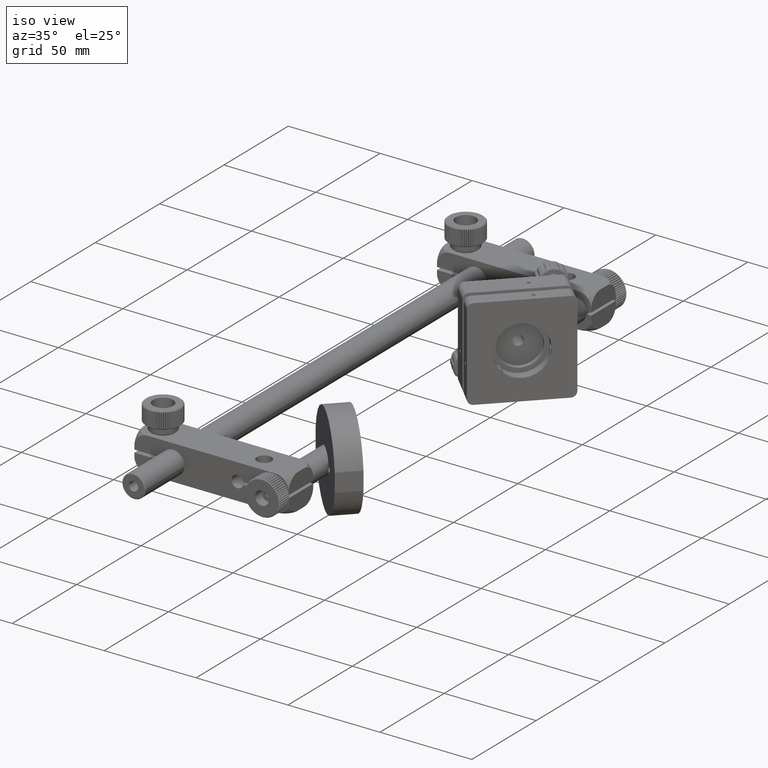
[diagram: clean part render]
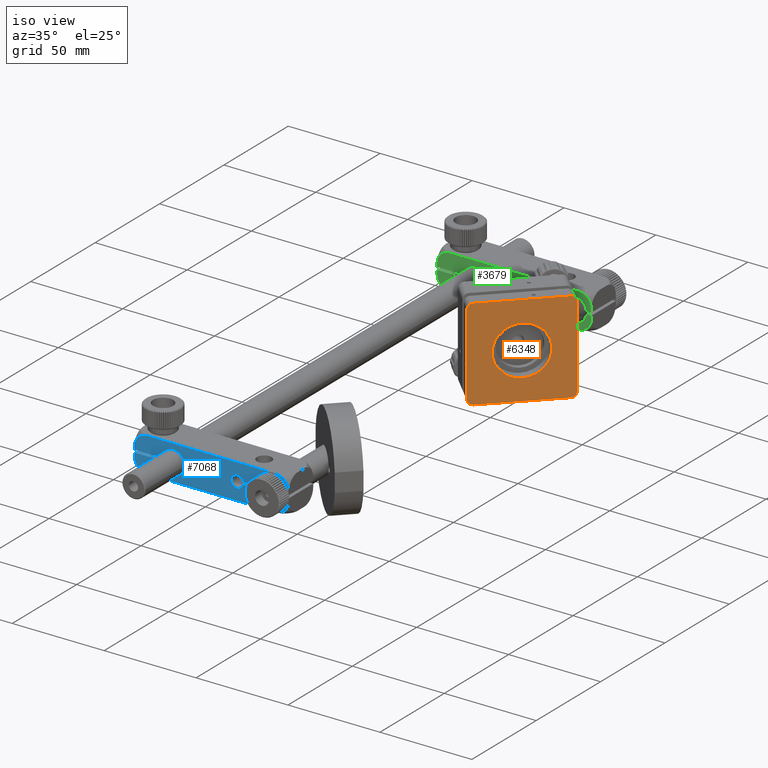
[diagram: same view with three faces highlighted in distinct colors, each labeled with its STEP entity id]
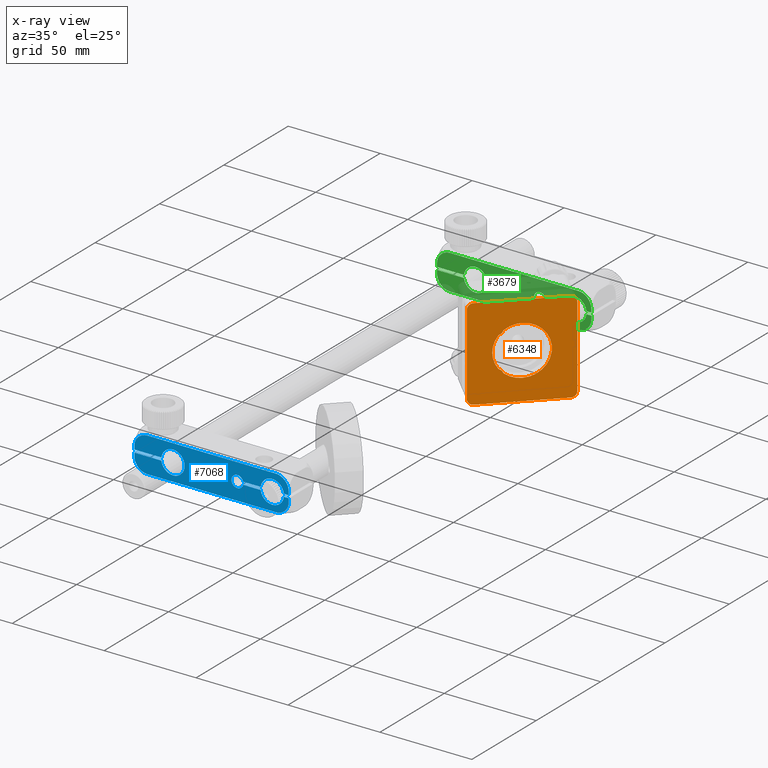
[diagram: x-ray of the same camera — body ghosted, the three highlighted faces saturated]
A machine part, iso view with three faces highlighted in distinct colors.
The next image is the same camera in x-ray (body ghosted, the three faces saturated) — at least one of them is partly hidden behind the body in this view.
Their STEP definitions:

[orange] entity #6348 — the highlighted planar face has unit normal (-0.7071, 0.7071, -0).
#884 = DIRECTION ( 'NONE',  ( -0.7071067811865432400, 0.7071067811865517900, -7.726098800170421200E-016 ) ) ;
#1166 = LINE ( 'NONE', #47859, #22134 ) ;
#1395 = ORIENTED_EDGE ( 'NONE', *, *, #35103, .F. ) ;
#1396 = CARTESIAN_POINT ( 'NONE',  ( 44.08302381741863500, 295.3695901585534800, -22.00000000000014900 ) ) ;
#1424 = DIRECTION ( 'NONE',  ( 0.7071067811865432400, -0.7071067811865517900, 7.726098800170421200E-016 ) ) ;
#1520 = CARTESIAN_POINT ( 'NONE',  ( 75.19572218962706200, 326.4822885307614200, 21.99999999999983700 ) ) ;
#2017 = DIRECTION ( 'NONE',  ( 0.0000000000000000000, 0.0000000000000000000, -1.000000000000000000 ) ) ;
#2019 = ORIENTED_EDGE ( 'NONE', *, *, #11513, .F. ) ;
#2107 = CIRCLE ( 'NONE', #31278, 2.999999999999999100 ) ;
#2232 = CIRCLE ( 'NONE', #7557, 2.000000000000000000 ) ;
#2311 = CARTESIAN_POINT ( 'NONE',  ( 75.19572218962696300, 326.4822885307612500, -25.00000000000016700 ) ) ;
#2489 = EDGE_CURVE ( 'NONE', #10709, #31782, #1166, .T. ) ;
#2712 = LINE ( 'NONE', #18917, #4992 ) ;
#4283 = DIRECTION ( 'NONE',  ( -2.495400289231349500E-016, 8.430953418204121900E-016, 1.000000000000000000 ) ) ;
#4641 = DIRECTION ( 'NONE',  ( -0.7071067811865432400, 0.7071067811865517900, -7.726098800170421200E-016 ) ) ;
#4992 = VECTOR ( 'NONE', #4283, 1000.000000000000000 ) ;
#5052 = CARTESIAN_POINT ( 'NONE',  ( 53.48594378235507200, 304.7725101234897200, 10.01490865749313400 ) ) ;
#5408 = CARTESIAN_POINT ( 'NONE',  ( 41.96170347385886900, 293.2482698149938800, -22.00000000000012800 ) ) ;
#6301 = AXIS2_PLACEMENT_3D ( 'NONE', #35407, #20872, #2017 ) ;
#6348 = ADVANCED_FACE ( 'NONE', ( #13882, #20896 ), #22699, .F. ) ;
#6369 = CIRCLE ( 'NONE', #26752, 13.50000000000000000 ) ;
#6393 = EDGE_CURVE ( 'NONE', #34385, #45968, #2712, .T. ) ;
#6785 = DIRECTION ( 'NONE',  ( 0.7071067811865517900, 0.7071067811865432400, -4.985580538488180600E-016 ) ) ;
#6926 = AXIS2_PLACEMENT_3D ( 'NONE', #23333, #884, #11575 ) ;
#6981 = VECTOR ( 'NONE', #40689, 1000.000000000000000 ) ;
#7453 = CARTESIAN_POINT ( 'NONE',  ( 51.86119841047083400, 303.1477647516055100, 10.99999999999983500 ) ) ;
#7524 = EDGE_CURVE ( 'NONE', #47754, #15612, #2232, .T. ) ;
#7557 = AXIS2_PLACEMENT_3D ( 'NONE', #8197, #4641, #34796 ) ;
#7682 = VERTEX_POINT ( 'NONE', #39167 ) ;
#7685 = AXIS2_PLACEMENT_3D ( 'NONE', #7453, #18359, #33431 ) ;
#7697 = ORIENTED_EDGE ( 'NONE', *, *, #37766, .F. ) ;
#7938 = VERTEX_POINT ( 'NONE', #25491 ) ;
#7948 = DIRECTION ( 'NONE',  ( 0.0000000000000000000, 0.0000000000000000000, 1.000000000000000000 ) ) ;
#8197 = CARTESIAN_POINT ( 'NONE',  ( 54.78574007986245700, 306.0723064209970500, -9.226835583488078600 ) ) ;
#8597 = CIRCLE ( 'NONE', #9053, 2.000000000000000000 ) ;
#8804 = CARTESIAN_POINT ( 'NONE',  ( 77.31704253318663700, 328.6036088743209700, -22.00000000000012400 ) ) ;
#9053 = AXIS2_PLACEMENT_3D ( 'NONE', #14926, #37773, #15389 ) ;
#9741 = ORIENTED_EDGE ( 'NONE', *, *, #2489, .F. ) ;
#10414 = AXIS2_PLACEMENT_3D ( 'NONE', #1396, #27630, #27311 ) ;
#10709 = VERTEX_POINT ( 'NONE', #32726 ) ;
#10797 = DIRECTION ( 'NONE',  ( -0.7071067811865432400, 0.7071067811865517900, -7.726098800170421200E-016 ) ) ;
#10813 = CIRCLE ( 'NONE', #47656, 2.999999999999999100 ) ;
#11046 = CARTESIAN_POINT ( 'NONE',  ( 59.63937300352291300, 310.9259393446574800, -1.679664435888853500E-013 ) ) ;
#11188 = ORIENTED_EDGE ( 'NONE', *, *, #45664, .T. ) ;
#11355 = VERTEX_POINT ( 'NONE', #29856 ) ;
#11513 = EDGE_CURVE ( 'NONE', #35102, #42177, #13041, .T. ) ;
#11575 = DIRECTION ( 'NONE',  ( -3.052961531661671500E-016, 7.873392175773806800E-016, 1.000000000000000000 ) ) ;
#12248 = EDGE_CURVE ( 'NONE', #28258, #16186, #18791, .T. ) ;
#12839 = CIRCLE ( 'NONE', #35946, 2.000000000000000000 ) ;
#13041 = CIRCLE ( 'NONE', #20173, 13.50000000000000000 ) ;
#13882 = FACE_BOUND ( 'NONE', #21316, .T. ) ;
#13988 = CARTESIAN_POINT ( 'NONE',  ( 59.63937300352291300, 310.9259393446574800, -1.679664435888853500E-013 ) ) ;
#14066 = ORIENTED_EDGE ( 'NONE', *, *, #27384, .F. ) ;
#14601 = DIRECTION ( 'NONE',  ( 0.0000000000000000000, 0.0000000000000000000, 1.000000000000000000 ) ) ;
#14926 = CARTESIAN_POINT ( 'NONE',  ( 54.78574007986229300, 306.0723064209970500, 9.226835583487750000 ) ) ;
#15033 = EDGE_CURVE ( 'NONE', #19788, #42177, #23089, .T. ) ;
#15064 = ORIENTED_EDGE ( 'NONE', *, *, #31388, .F. ) ;
#15389 = DIRECTION ( 'NONE',  ( 0.0000000000000000000, 0.0000000000000000000, 1.000000000000000000 ) ) ;
#15419 = CARTESIAN_POINT ( 'NONE',  ( 52.55776317884549800, 303.8443295199800800, -8.702263059678585900 ) ) ;
#15612 = VERTEX_POINT ( 'NONE', #19244 ) ;
#16186 = VERTEX_POINT ( 'NONE', #5052 ) ;
#17111 = ORIENTED_EDGE ( 'NONE', *, *, #12248, .T. ) ;
#17325 = CARTESIAN_POINT ( 'NONE',  ( 75.19572218962704800, 326.4822885307613700, 24.99999999999983700 ) ) ;
#17881 = ORIENTED_EDGE ( 'NONE', *, *, #7524, .T. ) ;
#17979 = ORIENTED_EDGE ( 'NONE', *, *, #46944, .F. ) ;
#18162 = DIRECTION ( 'NONE',  ( -0.7071067811865432400, 0.7071067811865517900, -7.726098800170421200E-016 ) ) ;
#18359 = DIRECTION ( 'NONE',  ( 0.7071067811865432400, -0.7071067811865517900, 7.726098800170421200E-016 ) ) ;
#18391 = AXIS2_PLACEMENT_3D ( 'NONE', #45754, #38271, #27208 ) ;
#18576 = EDGE_CURVE ( 'NONE', #33568, #11355, #6369, .T. ) ;
#18791 = CIRCLE ( 'NONE', #7685, 2.500000000000000400 ) ;
#18917 = CARTESIAN_POINT ( 'NONE',  ( 41.96170347385886900, 293.2482698149938800, -22.00000000000012800 ) ) ;
#19019 = CARTESIAN_POINT ( 'NONE',  ( 53.11501499354523800, 304.4015813346798600, 6.864073507421006000 ) ) ;
#19078 = CIRCLE ( 'NONE', #44579, 2.999999999999999100 ) ;
#19186 = ORIENTED_EDGE ( 'NONE', *, *, #35408, .F. ) ;
#19244 = CARTESIAN_POINT ( 'NONE',  ( 53.48594378235505800, 304.7725101234896700, -10.01490865749343800 ) ) ;
#19352 = VERTEX_POINT ( 'NONE', #34569 ) ;
#19782 = DIRECTION ( 'NONE',  ( 5.139921410301650800E-016, 0.0000000000000000000, -1.000000000000000000 ) ) ;
#19788 = VERTEX_POINT ( 'NONE', #15419 ) ;
#20173 = AXIS2_PLACEMENT_3D ( 'NONE', #39026, #1424, #46036 ) ;
#20872 = DIRECTION ( 'NONE',  ( 0.7071067811865432400, -0.7071067811865517900, 7.726098800170421200E-016 ) ) ;
#20896 = FACE_OUTER_BOUND ( 'NONE', #32618, .T. ) ;
#21316 = EDGE_LOOP ( 'NONE', ( #7697, #17881, #11188, #28072, #2019, #45417, #17111, #38017, #19186, #44529 ) ) ;
#22134 = VECTOR ( 'NONE', #6785, 1000.000000000000000 ) ;
#22699 = PLANE ( 'NONE',  #6926 ) ;
#23089 = CIRCLE ( 'NONE', #18391, 2.000000000000000000 ) ;
#23333 = CARTESIAN_POINT ( 'NONE',  ( 75.19572218962696300, 326.4822885307612500, -22.00000000000016700 ) ) ;
#24314 = DIRECTION ( 'NONE',  ( 5.139921410301650800E-016, 0.0000000000000000000, -1.000000000000000000 ) ) ;
#24616 = ORIENTED_EDGE ( 'NONE', *, *, #28579, .F. ) ;
#25491 = CARTESIAN_POINT ( 'NONE',  ( 44.08302381741864900, 295.3695901585534800, -25.00000000000014600 ) ) ;
#26752 = AXIS2_PLACEMENT_3D ( 'NONE', #13988, #36684, #36523 ) ;
#27208 = DIRECTION ( 'NONE',  ( 0.0000000000000000000, 0.0000000000000000000, 1.000000000000000000 ) ) ;
#27297 = VERTEX_POINT ( 'NONE', #41771 ) ;
#27311 = DIRECTION ( 'NONE',  ( 0.0000000000000000000, 0.0000000000000000000, 1.000000000000000000 ) ) ;
#27384 = EDGE_CURVE ( 'NONE', #27297, #19352, #46594, .T. ) ;
#27511 = CARTESIAN_POINT ( 'NONE',  ( 59.63937300352291300, 310.9259393446574800, -1.679664435888853500E-013 ) ) ;
#27630 = DIRECTION ( 'NONE',  ( -0.7071067811865432400, 0.7071067811865517900, -7.726098800170421200E-016 ) ) ;
#28072 = ORIENTED_EDGE ( 'NONE', *, *, #15033, .T. ) ;
#28258 = VERTEX_POINT ( 'NONE', #40470 ) ;
#28579 = EDGE_CURVE ( 'NONE', #31782, #27297, #19078, .T. ) ;
#29166 = VECTOR ( 'NONE', #45675, 1000.000000000000000 ) ;
#29564 = CIRCLE ( 'NONE', #46279, 13.50000000000000000 ) ;
#29770 = CARTESIAN_POINT ( 'NONE',  ( 53.94163000618236500, 305.2281963473169500, -10.83150264148596300 ) ) ;
#29856 = CARTESIAN_POINT ( 'NONE',  ( 59.63937300352291300, 310.9259393446574800, 13.49999999999983100 ) ) ;
#29955 = CARTESIAN_POINT ( 'NONE',  ( 75.19572218962696300, 326.4822885307612500, -25.00000000000016700 ) ) ;
#29962 = DIRECTION ( 'NONE',  ( 0.7071067811865432400, -0.7071067811865517900, 7.726098800170421200E-016 ) ) ;
#30189 = CIRCLE ( 'NONE', #10414, 2.999999999999999100 ) ;
#31278 = AXIS2_PLACEMENT_3D ( 'NONE', #47877, #18162, #14601 ) ;
#31388 = EDGE_CURVE ( 'NONE', #19352, #34302, #2107, .T. ) ;
#31782 = VERTEX_POINT ( 'NONE', #17325 ) ;
#31845 = DIRECTION ( 'NONE',  ( -0.7071067811865432400, 0.7071067811865517900, -7.726098800170421200E-016 ) ) ;
#32425 = ORIENTED_EDGE ( 'NONE', *, *, #6393, .F. ) ;
#32618 = EDGE_LOOP ( 'NONE', ( #15064, #14066, #24616, #9741, #38426, #32425, #17979, #1395 ) ) ;
#32726 = CARTESIAN_POINT ( 'NONE',  ( 44.08302381741879100, 295.3695901585534800, 24.99999999999985400 ) ) ;
#33201 = CARTESIAN_POINT ( 'NONE',  ( 44.08302381741877000, 295.3695901585535400, 21.99999999999985800 ) ) ;
#33431 = DIRECTION ( 'NONE',  ( 0.0000000000000000000, 0.0000000000000000000, -1.000000000000000000 ) ) ;
#33568 = VERTEX_POINT ( 'NONE', #48216 ) ;
#33712 = CARTESIAN_POINT ( 'NONE',  ( 51.98034403528812000, 303.2669103764229100, 8.057825421755124400 ) ) ;
#34230 = DIRECTION ( 'NONE',  ( -0.7071067811865432400, 0.7071067811865517900, -7.726098800170421200E-016 ) ) ;
#34302 = VERTEX_POINT ( 'NONE', #2311 ) ;
#34385 = VERTEX_POINT ( 'NONE', #5408 ) ;
#34569 = CARTESIAN_POINT ( 'NONE',  ( 77.31704253318663700, 328.6036088743209700, -22.00000000000012400 ) ) ;
#34668 = EDGE_CURVE ( 'NONE', #35102, #28258, #12839, .T. ) ;
#34796 = DIRECTION ( 'NONE',  ( 0.0000000000000000000, 0.0000000000000000000, 1.000000000000000000 ) ) ;
#35102 = VERTEX_POINT ( 'NONE', #33712 ) ;
#35103 = EDGE_CURVE ( 'NONE', #34302, #7938, #47242, .T. ) ;
#35369 = DIRECTION ( 'NONE',  ( 0.0000000000000000000, 0.0000000000000000000, -1.000000000000000000 ) ) ;
#35407 = CARTESIAN_POINT ( 'NONE',  ( 51.86119841047082000, 303.1477647516054500, -11.00000000000016500 ) ) ;
#35408 = EDGE_CURVE ( 'NONE', #11355, #7682, #43737, .T. ) ;
#35946 = AXIS2_PLACEMENT_3D ( 'NONE', #19019, #34230, #7948 ) ;
#36092 = CIRCLE ( 'NONE', #6301, 2.500000000000000400 ) ;
#36523 = DIRECTION ( 'NONE',  ( 5.139921410301650800E-016, 0.0000000000000000000, -1.000000000000000000 ) ) ;
#36684 = DIRECTION ( 'NONE',  ( 0.7071067811865432400, -0.7071067811865517900, 7.726098800170421200E-016 ) ) ;
#36712 = EDGE_CURVE ( 'NONE', #16186, #7682, #8597, .T. ) ;
#37766 = EDGE_CURVE ( 'NONE', #47754, #33568, #29564, .T. ) ;
#37773 = DIRECTION ( 'NONE',  ( -0.7071067811865432400, 0.7071067811865517900, -7.726098800170421200E-016 ) ) ;
#38017 = ORIENTED_EDGE ( 'NONE', *, *, #36712, .T. ) ;
#38271 = DIRECTION ( 'NONE',  ( -0.7071067811865432400, 0.7071067811865517900, -7.726098800170421200E-016 ) ) ;
#38426 = ORIENTED_EDGE ( 'NONE', *, *, #47806, .F. ) ;
#39026 = CARTESIAN_POINT ( 'NONE',  ( 59.63937300352291300, 310.9259393446574800, -1.679664435888853500E-013 ) ) ;
#39167 = CARTESIAN_POINT ( 'NONE',  ( 53.94163000618233600, 305.2281963473169500, 10.83150264148566500 ) ) ;
#40470 = CARTESIAN_POINT ( 'NONE',  ( 52.55776317884543400, 303.8443295199801400, 8.702263059678278600 ) ) ;
#40689 = DIRECTION ( 'NONE',  ( -0.7071067811865517900, -0.7071067811865432400, 4.985580538488180600E-016 ) ) ;
#40925 = CARTESIAN_POINT ( 'NONE',  ( 41.96170347385911700, 293.2482698149939300, 21.99999999999983700 ) ) ;
#41771 = CARTESIAN_POINT ( 'NONE',  ( 77.31704253318668000, 328.6036088743210300, 21.99999999999984000 ) ) ;
#42177 = VERTEX_POINT ( 'NONE', #43357 ) ;
#43357 = CARTESIAN_POINT ( 'NONE',  ( 51.98034403528825500, 303.2669103764229100, -8.057825421755461900 ) ) ;
#43737 = CIRCLE ( 'NONE', #47201, 13.50000000000000000 ) ;
#44529 = ORIENTED_EDGE ( 'NONE', *, *, #18576, .F. ) ;
#44578 = DIRECTION ( 'NONE',  ( 0.0000000000000000000, 0.0000000000000000000, 1.000000000000000000 ) ) ;
#44579 = AXIS2_PLACEMENT_3D ( 'NONE', #1520, #31845, #35369 ) ;
#45417 = ORIENTED_EDGE ( 'NONE', *, *, #34668, .T. ) ;
#45664 = EDGE_CURVE ( 'NONE', #15612, #19788, #36092, .T. ) ;
#45675 = DIRECTION ( 'NONE',  ( 3.052961531661671500E-016, -7.873392175773806800E-016, -1.000000000000000000 ) ) ;
#45754 = CARTESIAN_POINT ( 'NONE',  ( 53.11501499354525200, 304.4015813346798600, -6.864073507421344400 ) ) ;
#45896 = DIRECTION ( 'NONE',  ( 0.7071067811865432400, -0.7071067811865517900, 7.726098800170421200E-016 ) ) ;
#45968 = VERTEX_POINT ( 'NONE', #40925 ) ;
#46036 = DIRECTION ( 'NONE',  ( 5.139921410301650800E-016, 0.0000000000000000000, -1.000000000000000000 ) ) ;
#46279 = AXIS2_PLACEMENT_3D ( 'NONE', #27511, #45896, #19782 ) ;
#46594 = LINE ( 'NONE', #8804, #29166 ) ;
#46944 = EDGE_CURVE ( 'NONE', #7938, #34385, #30189, .T. ) ;
#47201 = AXIS2_PLACEMENT_3D ( 'NONE', #11046, #29962, #24314 ) ;
#47242 = LINE ( 'NONE', #29955, #6981 ) ;
#47656 = AXIS2_PLACEMENT_3D ( 'NONE', #33201, #10797, #44578 ) ;
#47754 = VERTEX_POINT ( 'NONE', #29770 ) ;
#47806 = EDGE_CURVE ( 'NONE', #45968, #10709, #10813, .T. ) ;
#47859 = CARTESIAN_POINT ( 'NONE',  ( 75.19572218962704800, 326.4822885307613700, 24.99999999999983700 ) ) ;
#47877 = CARTESIAN_POINT ( 'NONE',  ( 75.19572218962696300, 326.4822885307612500, -22.00000000000016700 ) ) ;
#48216 = CARTESIAN_POINT ( 'NONE',  ( 59.63937300352293400, 310.9259393446574800, -13.50000000000016900 ) ) ;

[blue] entity #7068 — the highlighted planar face has unit normal (0, 1, 0).
#165 = EDGE_CURVE ( 'NONE', #8453, #15293, #24598, .T. ) ;
#579 = CIRCLE ( 'NONE', #11562, 6.350000000000000500 ) ;
#591 = CARTESIAN_POINT ( 'NONE',  ( 60.30555310817379000, 124.8670949863762400, -0.7500000000000218700 ) ) ;
#779 = CARTESIAN_POINT ( 'NONE',  ( 55.92893218813449600, 124.8670949863762400, 2.428932188134529400 ) ) ;
#788 = DIRECTION ( 'NONE',  ( 1.000000000000000000, 0.0000000000000000000, 1.137413894084777200E-017 ) ) ;
#1185 = CARTESIAN_POINT ( 'NONE',  ( -21.00000000000000000, 124.8670949863762400, -0.7500000000000222000 ) ) ;
#1271 = VECTOR ( 'NONE', #17478, 1000.000000000000000 ) ;
#1423 = CIRCLE ( 'NONE', #22997, 7.071067811865467500 ) ;
#1604 = VECTOR ( 'NONE', #25143, 1000.000000000000000 ) ;
#1605 = ORIENTED_EDGE ( 'NONE', *, *, #35314, .T. ) ;
#1659 = EDGE_CURVE ( 'NONE', #46284, #22802, #25697, .T. ) ;
#1732 = CARTESIAN_POINT ( 'NONE',  ( -21.00000000000000000, 124.8670949863762400, 9.499999999999976900 ) ) ;
#1783 = CIRCLE ( 'NONE', #10128, 6.350000000000003200 ) ;
#2374 = DIRECTION ( 'NONE',  ( -0.0000000000000000000, -0.0000000000000000000, -1.000000000000000000 ) ) ;
#2600 = DIRECTION ( 'NONE',  ( 0.0000000000000000000, 1.000000000000000000, 0.0000000000000000000 ) ) ;
#2750 = DIRECTION ( 'NONE',  ( -0.0000000000000000000, -0.0000000000000000000, -1.000000000000000000 ) ) ;
#3044 = VERTEX_POINT ( 'NONE', #33646 ) ;
#3172 = DIRECTION ( 'NONE',  ( 0.0000000000000000000, 0.0000000000000000000, 1.000000000000000000 ) ) ;
#3225 = EDGE_CURVE ( 'NONE', #10530, #21928, #30316, .T. ) ;
#3313 = CARTESIAN_POINT ( 'NONE',  ( 60.30555310817379000, 124.8670949863762400, 0.7499999999999784600 ) ) ;
#3498 = CARTESIAN_POINT ( 'NONE',  ( 60.30555310817379000, 124.8670949863762400, -0.7500000000000218700 ) ) ;
#3736 = CARTESIAN_POINT ( 'NONE',  ( 47.69444689182622500, 124.8670949863762400, -0.7500000000000257600 ) ) ;
#3779 = EDGE_CURVE ( 'NONE', #13388, #12068, #12138, .T. ) ;
#3884 = EDGE_CURVE ( 'NONE', #10319, #18246, #6277, .T. ) ;
#4041 = CARTESIAN_POINT ( 'NONE',  ( -6.305553108173780800, 124.8670949863762400, 0.7499999999999781300 ) ) ;
#4350 = CARTESIAN_POINT ( 'NONE',  ( 38.16227766016837800, 124.8670949863762400, 0.7499999999999783500 ) ) ;
#4775 = VECTOR ( 'NONE', #19157, 1000.000000000000000 ) ;
#4816 = DIRECTION ( 'NONE',  ( 0.0000000000000000000, 0.0000000000000000000, 1.000000000000000000 ) ) ;
#4829 = CARTESIAN_POINT ( 'NONE',  ( -13.92893218813448900, 124.8670949863762400, -2.428932188134573300 ) ) ;
#5150 = EDGE_CURVE ( 'NONE', #33978, #8453, #17857, .T. ) ;
#5603 = CARTESIAN_POINT ( 'NONE',  ( 0.0000000000000000000, 124.8670949863762400, -2.494026576919642200E-014 ) ) ;
#5863 = DIRECTION ( 'NONE',  ( 0.0000000000000000000, 1.000000000000000000, 0.0000000000000000000 ) ) ;
#5879 = CARTESIAN_POINT ( 'NONE',  ( 63.00000000000000000, 124.8670949863762400, -0.7500000000000218700 ) ) ;
#5916 = ORIENTED_EDGE ( 'NONE', *, *, #26918, .T. ) ;
#6013 = EDGE_CURVE ( 'NONE', #21928, #15360, #44604, .T. ) ;
#6095 = DIRECTION ( 'NONE',  ( 0.0000000000000000000, 1.000000000000000000, 0.0000000000000000000 ) ) ;
#6125 = CARTESIAN_POINT ( 'NONE',  ( 38.16227766016838500, 124.8670949863762400, -0.7500000000000218700 ) ) ;
#6277 = CIRCLE ( 'NONE', #15309, 7.071067811865467500 ) ;
#6630 = VERTEX_POINT ( 'NONE', #21018 ) ;
#6863 = DIRECTION ( 'NONE',  ( 0.0000000000000000000, 1.000000000000000000, 0.0000000000000000000 ) ) ;
#7068 = ADVANCED_FACE ( 'NONE', ( #40747 ), #27710, .F. ) ;
#7549 = AXIS2_PLACEMENT_3D ( 'NONE', #46258, #42182, #20479 ) ;
#8116 = VECTOR ( 'NONE', #2750, 1000.000000000000000 ) ;
#8146 = CARTESIAN_POINT ( 'NONE',  ( -18.92893218813449600, 124.8670949863762400, -7.428932188134580400 ) ) ;
#8214 = CIRCLE ( 'NONE', #33466, 7.071067811865467500 ) ;
#8385 = DIRECTION ( 'NONE',  ( 0.0000000000000000000, 1.000000000000000000, 0.0000000000000000000 ) ) ;
#8453 = VERTEX_POINT ( 'NONE', #3736 ) ;
#8694 = CARTESIAN_POINT ( 'NONE',  ( 63.00000000000000000, 124.8670949863762400, 9.499999999999976900 ) ) ;
#9223 = CARTESIAN_POINT ( 'NONE',  ( -21.00000000000000000, 124.8670949863762400, 9.499999999999976900 ) ) ;
#9230 = EDGE_CURVE ( 'NONE', #33351, #28990, #11462, .T. ) ;
#9319 = VERTEX_POINT ( 'NONE', #26556 ) ;
#9538 = EDGE_CURVE ( 'NONE', #23281, #12024, #12627, .T. ) ;
#9595 = CARTESIAN_POINT ( 'NONE',  ( 7.776507174585694100E-016, 124.8670949863762400, -6.350000000000025400 ) ) ;
#9609 = ORIENTED_EDGE ( 'NONE', *, *, #31097, .T. ) ;
#9877 = CARTESIAN_POINT ( 'NONE',  ( -21.00000000000000000, 124.8670949863763000, 2.428932188134540000 ) ) ;
#10128 = AXIS2_PLACEMENT_3D ( 'NONE', #31595, #39040, #42762 ) ;
#10319 = VERTEX_POINT ( 'NONE', #27086 ) ;
#10407 = DIRECTION ( 'NONE',  ( 0.0000000000000000000, 0.0000000000000000000, 1.000000000000000000 ) ) ;
#10530 = VERTEX_POINT ( 'NONE', #46525 ) ;
#10573 = EDGE_CURVE ( 'NONE', #44748, #20113, #45815, .T. ) ;
#10868 = DIRECTION ( 'NONE',  ( 0.0000000000000000000, 0.0000000000000000000, 1.000000000000000000 ) ) ;
#11039 = DIRECTION ( 'NONE',  ( 0.0000000000000000000, 1.000000000000000000, 0.0000000000000000000 ) ) ;
#11244 = CIRCLE ( 'NONE', #15556, 6.350000000000003200 ) ;
#11462 = LINE ( 'NONE', #21377, #1604 ) ;
#11562 = AXIS2_PLACEMENT_3D ( 'NONE', #28690, #32625, #21472 ) ;
#11858 = DIRECTION ( 'NONE',  ( 1.000000000000000000, 0.0000000000000000000, -2.213493669684004800E-017 ) ) ;
#11893 = CARTESIAN_POINT ( 'NONE',  ( 55.92893218813448200, 124.8670949863762400, -9.500000000000037300 ) ) ;
#11931 = CARTESIAN_POINT ( 'NONE',  ( 60.30555310817379000, 124.8670949863762400, 0.7499999999999790200 ) ) ;
#12024 = VERTEX_POINT ( 'NONE', #8146 ) ;
#12068 = VERTEX_POINT ( 'NONE', #9595 ) ;
#12071 = EDGE_CURVE ( 'NONE', #6630, #28484, #1423, .T. ) ;
#12124 = DIRECTION ( 'NONE',  ( 0.0000000000000000000, 0.0000000000000000000, 1.000000000000000000 ) ) ;
#12138 = CIRCLE ( 'NONE', #40632, 6.350000000000000500 ) ;
#12451 = DIRECTION ( 'NONE',  ( 0.0000000000000000000, 1.000000000000000000, 0.0000000000000000000 ) ) ;
#12461 = DIRECTION ( 'NONE',  ( 0.0000000000000000000, 0.0000000000000000000, 1.000000000000000000 ) ) ;
#12536 = VECTOR ( 'NONE', #2374, 1000.000000000000000 ) ;
#12563 = ORIENTED_EDGE ( 'NONE', *, *, #34598, .F. ) ;
#12627 = CIRCLE ( 'NONE', #45138, 7.071067811865467500 ) ;
#12803 = CARTESIAN_POINT ( 'NONE',  ( -21.00000000000000000, 124.8670949863762400, 0.7499999999999784600 ) ) ;
#12845 = LINE ( 'NONE', #35788, #1271 ) ;
#13031 = VERTEX_POINT ( 'NONE', #11931 ) ;
#13293 = EDGE_CURVE ( 'NONE', #28990, #6630, #36864, .T. ) ;
#13388 = VERTEX_POINT ( 'NONE', #39971 ) ;
#13505 = DIRECTION ( 'NONE',  ( 0.0000000000000000000, 1.000000000000000000, 0.0000000000000000000 ) ) ;
#13921 = DIRECTION ( 'NONE',  ( 0.0000000000000000000, 0.0000000000000000000, 1.000000000000000000 ) ) ;
#15220 = ORIENTED_EDGE ( 'NONE', *, *, #31582, .F. ) ;
#15293 = VERTEX_POINT ( 'NONE', #6125 ) ;
#15309 = AXIS2_PLACEMENT_3D ( 'NONE', #20911, #6095, #24200 ) ;
#15344 = DIRECTION ( 'NONE',  ( -1.000000000000000000, -0.0000000000000000000, -0.0000000000000000000 ) ) ;
#15360 = VERTEX_POINT ( 'NONE', #19580 ) ;
#15463 = ORIENTED_EDGE ( 'NONE', *, *, #47609, .F. ) ;
#15556 = AXIS2_PLACEMENT_3D ( 'NONE', #32132, #2600, #20975 ) ;
#15578 = CARTESIAN_POINT ( 'NONE',  ( 38.16227766016838500, 124.8670949863762400, -0.7500000000000218700 ) ) ;
#15630 = ORIENTED_EDGE ( 'NONE', *, *, #3884, .F. ) ;
#15829 = ORIENTED_EDGE ( 'NONE', *, *, #13293, .F. ) ;
#16583 = ORIENTED_EDGE ( 'NONE', *, *, #9538, .F. ) ;
#16861 = DIRECTION ( 'NONE',  ( 0.0000000000000000000, 1.000000000000000000, 0.0000000000000000000 ) ) ;
#16912 = ORIENTED_EDGE ( 'NONE', *, *, #12071, .F. ) ;
#16949 = VECTOR ( 'NONE', #18364, 1000.000000000000000 ) ;
#17118 = AXIS2_PLACEMENT_3D ( 'NONE', #43731, #17953, #3172 ) ;
#17478 = DIRECTION ( 'NONE',  ( 1.000000000000000000, 0.0000000000000000000, 0.0000000000000000000 ) ) ;
#17741 = CARTESIAN_POINT ( 'NONE',  ( 35.00000000000000000, 124.8670949863762400, -2.922638800757474300E-014 ) ) ;
#17857 = CIRCLE ( 'NONE', #27584, 6.350000000000000500 ) ;
#17953 = DIRECTION ( 'NONE',  ( 0.0000000000000000000, 1.000000000000000000, 0.0000000000000000000 ) ) ;
#18246 = VERTEX_POINT ( 'NONE', #29901 ) ;
#18364 = DIRECTION ( 'NONE',  ( 1.000000000000000000, 0.0000000000000000000, 0.0000000000000000000 ) ) ;
#18904 = ORIENTED_EDGE ( 'NONE', *, *, #43236, .T. ) ;
#19157 = DIRECTION ( 'NONE',  ( -1.000000000000000000, -0.0000000000000000000, -0.0000000000000000000 ) ) ;
#19214 = ORIENTED_EDGE ( 'NONE', *, *, #25421, .T. ) ;
#19580 = CARTESIAN_POINT ( 'NONE',  ( -21.00000000000000000, 124.8670949863763000, -2.428932188134584400 ) ) ;
#19961 = CARTESIAN_POINT ( 'NONE',  ( 63.00000000000000000, 124.8670949863763000, -2.428932188134584400 ) ) ;
#20113 = VERTEX_POINT ( 'NONE', #24875 ) ;
#20135 = VERTEX_POINT ( 'NONE', #25203 ) ;
#20311 = ORIENTED_EDGE ( 'NONE', *, *, #45329, .T. ) ;
#20465 = DIRECTION ( 'NONE',  ( 0.0000000000000000000, -0.0000000000000000000, 1.000000000000000000 ) ) ;
#20479 = DIRECTION ( 'NONE',  ( 0.0000000000000000000, 0.0000000000000000000, 1.000000000000000000 ) ) ;
#20911 = CARTESIAN_POINT ( 'NONE',  ( 55.92893218813449600, 124.8670949863762400, 2.428932188134529400 ) ) ;
#20975 = DIRECTION ( 'NONE',  ( 0.0000000000000000000, 0.0000000000000000000, 1.000000000000000000 ) ) ;
#21018 = CARTESIAN_POINT ( 'NONE',  ( 60.92893218813449600, 124.8670949863762400, -7.428932188134579600 ) ) ;
#21058 = EDGE_LOOP ( 'NONE', ( #12563, #45700, #9609, #20311, #41391, #1605, #45280, #45972, #47364, #16583, #27761, #16912, #15829, #31557, #36650, #40564, #27087, #18904, #19214, #43506, #23317, #5916, #30392, #21375, #30639, #15220, #15630, #42817, #15463 ) ) ;
#21152 = LINE ( 'NONE', #3313, #30511 ) ;
#21375 = ORIENTED_EDGE ( 'NONE', *, *, #23454, .T. ) ;
#21377 = CARTESIAN_POINT ( 'NONE',  ( 63.00000000000000000, 124.8670949863762400, 9.499999999999976900 ) ) ;
#21472 = DIRECTION ( 'NONE',  ( 0.0000000000000000000, 0.0000000000000000000, 1.000000000000000000 ) ) ;
#21928 = VERTEX_POINT ( 'NONE', #40692 ) ;
#22576 = VERTEX_POINT ( 'NONE', #45300 ) ;
#22802 = VERTEX_POINT ( 'NONE', #12803 ) ;
#22997 = AXIS2_PLACEMENT_3D ( 'NONE', #24455, #5863, #38979 ) ;
#23281 = VERTEX_POINT ( 'NONE', #32693 ) ;
#23317 = ORIENTED_EDGE ( 'NONE', *, *, #41385, .T. ) ;
#23454 = EDGE_CURVE ( 'NONE', #13031, #20113, #21152, .T. ) ;
#23684 = VECTOR ( 'NONE', #11858, 1000.000000000000000 ) ;
#24200 = DIRECTION ( 'NONE',  ( 0.0000000000000000000, 0.0000000000000000000, 1.000000000000000000 ) ) ;
#24455 = CARTESIAN_POINT ( 'NONE',  ( 55.92893218813449600, 124.8670949863762400, -2.428932188134573300 ) ) ;
#24598 = LINE ( 'NONE', #15578, #4775 ) ;
#24858 = CIRCLE ( 'NONE', #29467, 7.071067811865467500 ) ;
#24867 = DIRECTION ( 'NONE',  ( 0.0000000000000000000, 1.000000000000000000, 0.0000000000000000000 ) ) ;
#24875 = CARTESIAN_POINT ( 'NONE',  ( 63.00000000000000000, 124.8670949863762400, 0.7499999999999784600 ) ) ;
#25143 = DIRECTION ( 'NONE',  ( -0.0000000000000000000, -0.0000000000000000000, -1.000000000000000000 ) ) ;
#25203 = CARTESIAN_POINT ( 'NONE',  ( -13.92893218813448900, 124.8670949863762400, 9.499999999999976900 ) ) ;
#25421 = EDGE_CURVE ( 'NONE', #9319, #38965, #34002, .T. ) ;
#25566 = VERTEX_POINT ( 'NONE', #47375 ) ;
#25697 = LINE ( 'NONE', #28496, #8116 ) ;
#25946 = VECTOR ( 'NONE', #15344, 1000.000000000000000 ) ;
#26023 = AXIS2_PLACEMENT_3D ( 'NONE', #9223, #16861, #20465 ) ;
#26066 = EDGE_CURVE ( 'NONE', #23281, #28484, #12845, .T. ) ;
#26210 = DIRECTION ( 'NONE',  ( 0.0000000000000000000, 1.000000000000000000, 0.0000000000000000000 ) ) ;
#26368 = CIRCLE ( 'NONE', #17118, 3.250000000000000900 ) ;
#26556 = CARTESIAN_POINT ( 'NONE',  ( 35.00000000000000000, 124.8670949863762400, -3.250000000000029800 ) ) ;
#26918 = EDGE_CURVE ( 'NONE', #25566, #3044, #1783, .T. ) ;
#27086 = CARTESIAN_POINT ( 'NONE',  ( 55.92893218813449600, 124.8670949863762400, 9.499999999999976900 ) ) ;
#27087 = ORIENTED_EDGE ( 'NONE', *, *, #165, .T. ) ;
#27353 = DIRECTION ( 'NONE',  ( 0.0000000000000000000, 1.000000000000000000, 0.0000000000000000000 ) ) ;
#27584 = AXIS2_PLACEMENT_3D ( 'NONE', #46055, #27353, #12124 ) ;
#27710 = PLANE ( 'NONE',  #26023 ) ;
#27761 = ORIENTED_EDGE ( 'NONE', *, *, #26066, .T. ) ;
#27999 = CARTESIAN_POINT ( 'NONE',  ( -13.92893218813448900, 124.8670949863762400, 2.428932188134529400 ) ) ;
#28151 = DIRECTION ( 'NONE',  ( 0.0000000000000000000, 0.0000000000000000000, 1.000000000000000000 ) ) ;
#28172 = AXIS2_PLACEMENT_3D ( 'NONE', #5603, #31433, #31260 ) ;
#28484 = VERTEX_POINT ( 'NONE', #11893 ) ;
#28496 = CARTESIAN_POINT ( 'NONE',  ( -21.00000000000000000, 124.8670949863762400, 9.499999999999976900 ) ) ;
#28690 = CARTESIAN_POINT ( 'NONE',  ( 0.0000000000000000000, 124.8670949863762400, -2.494026576919642200E-014 ) ) ;
#28812 = CIRCLE ( 'NONE', #29061, 3.250000000000000900 ) ;
#28990 = VERTEX_POINT ( 'NONE', #19961 ) ;
#29052 = AXIS2_PLACEMENT_3D ( 'NONE', #40295, #6863, #40136 ) ;
#29061 = AXIS2_PLACEMENT_3D ( 'NONE', #17741, #13505, #10407 ) ;
#29467 = AXIS2_PLACEMENT_3D ( 'NONE', #4829, #8385, #12461 ) ;
#29901 = CARTESIAN_POINT ( 'NONE',  ( 60.92893218813449600, 124.8670949863762400, 7.428932188134535200 ) ) ;
#30029 = LINE ( 'NONE', #4350, #34080 ) ;
#30316 = LINE ( 'NONE', #1185, #33818 ) ;
#30392 = ORIENTED_EDGE ( 'NONE', *, *, #32745, .T. ) ;
#30511 = VECTOR ( 'NONE', #33632, 1000.000000000000000 ) ;
#30639 = ORIENTED_EDGE ( 'NONE', *, *, #10573, .F. ) ;
#30673 = CARTESIAN_POINT ( 'NONE',  ( -21.00000000000000000, 124.8670949863762400, 0.7499999999999784600 ) ) ;
#31097 = EDGE_CURVE ( 'NONE', #22802, #42976, #33636, .T. ) ;
#31260 = DIRECTION ( 'NONE',  ( 0.0000000000000000000, 0.0000000000000000000, 1.000000000000000000 ) ) ;
#31433 = DIRECTION ( 'NONE',  ( 0.0000000000000000000, 1.000000000000000000, 0.0000000000000000000 ) ) ;
#31557 = ORIENTED_EDGE ( 'NONE', *, *, #9230, .F. ) ;
#31582 = EDGE_CURVE ( 'NONE', #18246, #44748, #43469, .T. ) ;
#31595 = CARTESIAN_POINT ( 'NONE',  ( 54.00000000000000700, 124.8670949863762400, -3.155314007983727800E-014 ) ) ;
#31608 = DIRECTION ( 'NONE',  ( 0.0000000000000000000, 1.000000000000000000, 0.0000000000000000000 ) ) ;
#31957 = EDGE_CURVE ( 'NONE', #33351, #33978, #32403, .T. ) ;
#32132 = CARTESIAN_POINT ( 'NONE',  ( 54.00000000000000700, 124.8670949863762400, -3.155314007983727800E-014 ) ) ;
#32403 = LINE ( 'NONE', #591, #25946 ) ;
#32429 = CARTESIAN_POINT ( 'NONE',  ( -13.92893218813448900, 124.8670949863762400, -2.428932188134573300 ) ) ;
#32625 = DIRECTION ( 'NONE',  ( 0.0000000000000000000, 1.000000000000000000, 0.0000000000000000000 ) ) ;
#32693 = CARTESIAN_POINT ( 'NONE',  ( -13.92893218813448900, 124.8670949863762400, -9.500000000000023100 ) ) ;
#32725 = CIRCLE ( 'NONE', #28172, 6.350000000000000500 ) ;
#32745 = EDGE_CURVE ( 'NONE', #3044, #13031, #11244, .T. ) ;
#32986 = AXIS2_PLACEMENT_3D ( 'NONE', #27999, #31608, #13921 ) ;
#33285 = CARTESIAN_POINT ( 'NONE',  ( -13.92893218813448900, 124.8670949863762400, 2.428932188134529400 ) ) ;
#33351 = VERTEX_POINT ( 'NONE', #5879 ) ;
#33466 = AXIS2_PLACEMENT_3D ( 'NONE', #33285, #11039, #10868 ) ;
#33623 = CIRCLE ( 'NONE', #32986, 7.071067811865467500 ) ;
#33632 = DIRECTION ( 'NONE',  ( 1.000000000000000000, 0.0000000000000000000, 0.0000000000000000000 ) ) ;
#33636 = LINE ( 'NONE', #30673, #23684 ) ;
#33646 = CARTESIAN_POINT ( 'NONE',  ( 54.00000000000000700, 124.8670949863762400, 6.349999999999972100 ) ) ;
#33818 = VECTOR ( 'NONE', #46128, 1000.000000000000000 ) ;
#33978 = VERTEX_POINT ( 'NONE', #3498 ) ;
#34002 = CIRCLE ( 'NONE', #7549, 3.250000000000000900 ) ;
#34080 = VECTOR ( 'NONE', #788, 1000.000000000000000 ) ;
#34598 = EDGE_CURVE ( 'NONE', #46284, #22576, #8214, .T. ) ;
#34810 = CARTESIAN_POINT ( 'NONE',  ( 0.0000000000000000000, 124.8670949863762400, -2.494026576919642200E-014 ) ) ;
#35314 = EDGE_CURVE ( 'NONE', #12068, #10530, #32725, .T. ) ;
#35788 = CARTESIAN_POINT ( 'NONE',  ( -21.00000000000000000, 124.8670949863762400, -9.500000000000023100 ) ) ;
#36401 = CARTESIAN_POINT ( 'NONE',  ( 38.16227766016837800, 124.8670949863762400, 0.7499999999999783500 ) ) ;
#36650 = ORIENTED_EDGE ( 'NONE', *, *, #31957, .T. ) ;
#36864 = CIRCLE ( 'NONE', #29052, 7.071067811865467500 ) ;
#36880 = AXIS2_PLACEMENT_3D ( 'NONE', #779, #26210, #37772 ) ;
#37016 = CARTESIAN_POINT ( 'NONE',  ( -21.00000000000000000, 124.8670949863762400, 9.499999999999976900 ) ) ;
#37772 = DIRECTION ( 'NONE',  ( 0.0000000000000000000, 0.0000000000000000000, 1.000000000000000000 ) ) ;
#37847 = EDGE_CURVE ( 'NONE', #12024, #15360, #24858, .T. ) ;
#38566 = LINE ( 'NONE', #37016, #16949 ) ;
#38813 = VECTOR ( 'NONE', #42917, 1000.000000000000000 ) ;
#38965 = VERTEX_POINT ( 'NONE', #40841 ) ;
#38979 = DIRECTION ( 'NONE',  ( 0.0000000000000000000, 0.0000000000000000000, 1.000000000000000000 ) ) ;
#39040 = DIRECTION ( 'NONE',  ( 0.0000000000000000000, 1.000000000000000000, 0.0000000000000000000 ) ) ;
#39971 = CARTESIAN_POINT ( 'NONE',  ( 0.0000000000000000000, 124.8670949863762400, 6.349999999999975700 ) ) ;
#40136 = DIRECTION ( 'NONE',  ( 0.0000000000000000000, 0.0000000000000000000, 1.000000000000000000 ) ) ;
#40295 = CARTESIAN_POINT ( 'NONE',  ( 55.92893218813449600, 124.8670949863762400, -2.428932188134573300 ) ) ;
#40367 = VERTEX_POINT ( 'NONE', #36401 ) ;
#40564 = ORIENTED_EDGE ( 'NONE', *, *, #5150, .T. ) ;
#40632 = AXIS2_PLACEMENT_3D ( 'NONE', #34810, #12451, #4816 ) ;
#40692 = CARTESIAN_POINT ( 'NONE',  ( -21.00000000000000000, 124.8670949863762400, -0.7500000000000222000 ) ) ;
#40747 = FACE_OUTER_BOUND ( 'NONE', #21058, .T. ) ;
#40841 = CARTESIAN_POINT ( 'NONE',  ( 35.00000000000000000, 124.8670949863762400, 3.249999999999971600 ) ) ;
#41385 = EDGE_CURVE ( 'NONE', #40367, #25566, #30029, .T. ) ;
#41391 = ORIENTED_EDGE ( 'NONE', *, *, #3779, .T. ) ;
#42150 = EDGE_CURVE ( 'NONE', #38965, #40367, #28812, .T. ) ;
#42182 = DIRECTION ( 'NONE',  ( 0.0000000000000000000, 1.000000000000000000, 0.0000000000000000000 ) ) ;
#42762 = DIRECTION ( 'NONE',  ( 0.0000000000000000000, 0.0000000000000000000, 1.000000000000000000 ) ) ;
#42817 = ORIENTED_EDGE ( 'NONE', *, *, #43837, .F. ) ;
#42917 = DIRECTION ( 'NONE',  ( -0.0000000000000000000, -0.0000000000000000000, -1.000000000000000000 ) ) ;
#42976 = VERTEX_POINT ( 'NONE', #4041 ) ;
#43236 = EDGE_CURVE ( 'NONE', #15293, #9319, #26368, .T. ) ;
#43469 = CIRCLE ( 'NONE', #36880, 7.071067811865467500 ) ;
#43506 = ORIENTED_EDGE ( 'NONE', *, *, #42150, .T. ) ;
#43731 = CARTESIAN_POINT ( 'NONE',  ( 35.00000000000000000, 124.8670949863762400, -2.922638800757474300E-014 ) ) ;
#43837 = EDGE_CURVE ( 'NONE', #20135, #10319, #38566, .T. ) ;
#43839 = CARTESIAN_POINT ( 'NONE',  ( 63.00000000000000000, 124.8670949863763000, 2.428932188134540000 ) ) ;
#44604 = LINE ( 'NONE', #1732, #38813 ) ;
#44748 = VERTEX_POINT ( 'NONE', #43839 ) ;
#45138 = AXIS2_PLACEMENT_3D ( 'NONE', #32429, #24867, #28151 ) ;
#45280 = ORIENTED_EDGE ( 'NONE', *, *, #3225, .T. ) ;
#45300 = CARTESIAN_POINT ( 'NONE',  ( -18.92893218813449600, 124.8670949863762400, 7.428932188134536000 ) ) ;
#45329 = EDGE_CURVE ( 'NONE', #42976, #13388, #579, .T. ) ;
#45700 = ORIENTED_EDGE ( 'NONE', *, *, #1659, .T. ) ;
#45815 = LINE ( 'NONE', #8694, #12536 ) ;
#45972 = ORIENTED_EDGE ( 'NONE', *, *, #6013, .T. ) ;
#46055 = CARTESIAN_POINT ( 'NONE',  ( 54.00000000000000700, 124.8670949863762400, -3.155314007983727800E-014 ) ) ;
#46128 = DIRECTION ( 'NONE',  ( -1.000000000000000000, -0.0000000000000000000, -2.213493669684004800E-017 ) ) ;
#46258 = CARTESIAN_POINT ( 'NONE',  ( 35.00000000000000000, 124.8670949863762400, -2.922638800757474300E-014 ) ) ;
#46284 = VERTEX_POINT ( 'NONE', #9877 ) ;
#46525 = CARTESIAN_POINT ( 'NONE',  ( -6.305553108173780800, 124.8670949863762400, -0.7500000000000218700 ) ) ;
#47364 = ORIENTED_EDGE ( 'NONE', *, *, #37847, .F. ) ;
#47375 = CARTESIAN_POINT ( 'NONE',  ( 47.69444689182622500, 124.8670949863762400, 0.7499999999999784600 ) ) ;
#47609 = EDGE_CURVE ( 'NONE', #22576, #20135, #33623, .T. ) ;

[green] entity #3679 — the highlighted planar face has unit normal (0, 1, 0).
#142 = AXIS2_PLACEMENT_3D ( 'NONE', #17866, #2921, #29189 ) ;
#187 = EDGE_CURVE ( 'NONE', #1677, #18909, #16430, .T. ) ;
#290 = ORIENTED_EDGE ( 'NONE', *, *, #4858, .T. ) ;
#298 = VERTEX_POINT ( 'NONE', #24712 ) ;
#764 = VERTEX_POINT ( 'NONE', #27798 ) ;
#1239 = CARTESIAN_POINT ( 'NONE',  ( 54.00000000000000700, 359.9634782757152000, 6.349999999999780300 ) ) ;
#1254 = DIRECTION ( 'NONE',  ( -0.0000000000000000000, -0.0000000000000000000, -1.000000000000000000 ) ) ;
#1397 = ORIENTED_EDGE ( 'NONE', *, *, #187, .T. ) ;
#1479 = AXIS2_PLACEMENT_3D ( 'NONE', #33662, #40964, #44557 ) ;
#1667 = ORIENTED_EDGE ( 'NONE', *, *, #32885, .T. ) ;
#1677 = VERTEX_POINT ( 'NONE', #9700 ) ;
#1764 = CARTESIAN_POINT ( 'NONE',  ( 60.30555310817379000, 359.9634782757152000, 0.7499999999997871700 ) ) ;
#1777 = DIRECTION ( 'NONE',  ( 1.000000000000000000, 0.0000000000000000000, 0.0000000000000000000 ) ) ;
#1788 = DIRECTION ( 'NONE',  ( 0.0000000000000000000, 0.0000000000000000000, 1.000000000000000000 ) ) ;
#1992 = CIRCLE ( 'NONE', #6176, 3.250000000000000900 ) ;
#2110 = DIRECTION ( 'NONE',  ( 0.0000000000000000000, 1.000000000000000000, 0.0000000000000000000 ) ) ;
#2517 = CARTESIAN_POINT ( 'NONE',  ( 60.92893218813449600, 359.9634782757152000, -7.428932188134769600 ) ) ;
#2702 = ORIENTED_EDGE ( 'NONE', *, *, #39700, .T. ) ;
#2921 = DIRECTION ( 'NONE',  ( 0.0000000000000000000, 1.000000000000000000, 0.0000000000000000000 ) ) ;
#3081 = DIRECTION ( 'NONE',  ( 0.0000000000000000000, 1.000000000000000000, 0.0000000000000000000 ) ) ;
#3465 = CARTESIAN_POINT ( 'NONE',  ( -21.00000000000000000, 359.9634782757152000, -0.7500000000002135000 ) ) ;
#3561 = CARTESIAN_POINT ( 'NONE',  ( -6.305553108173780800, 359.9634782757152000, 0.7499999999997868400 ) ) ;
#3679 = ADVANCED_FACE ( 'NONE', ( #43653 ), #27443, .F. ) ;
#3729 = VERTEX_POINT ( 'NONE', #9014 ) ;
#4053 = DIRECTION ( 'NONE',  ( 0.0000000000000000000, 0.0000000000000000000, 1.000000000000000000 ) ) ;
#4330 = ORIENTED_EDGE ( 'NONE', *, *, #21676, .T. ) ;
#4858 = EDGE_CURVE ( 'NONE', #19690, #7447, #36561, .T. ) ;
#5115 = EDGE_CURVE ( 'NONE', #47140, #298, #21385, .T. ) ;
#5305 = CIRCLE ( 'NONE', #9976, 7.071067811865467500 ) ;
#5500 = VERTEX_POINT ( 'NONE', #31475 ) ;
#5531 = ORIENTED_EDGE ( 'NONE', *, *, #36753, .F. ) ;
#5539 = VERTEX_POINT ( 'NONE', #28686 ) ;
#6122 = ORIENTED_EDGE ( 'NONE', *, *, #42883, .F. ) ;
#6176 = AXIS2_PLACEMENT_3D ( 'NONE', #12861, #13025, #35715 ) ;
#6234 = CIRCLE ( 'NONE', #40369, 3.250000000000000900 ) ;
#6319 = DIRECTION ( 'NONE',  ( 0.0000000000000000000, 1.000000000000000000, 0.0000000000000000000 ) ) ;
#6328 = VECTOR ( 'NONE', #39149, 1000.000000000000000 ) ;
#6412 = DIRECTION ( 'NONE',  ( 0.0000000000000000000, 0.0000000000000000000, 1.000000000000000000 ) ) ;
#6492 = ORIENTED_EDGE ( 'NONE', *, *, #48098, .T. ) ;
#6654 = DIRECTION ( 'NONE',  ( 0.0000000000000000000, 1.000000000000000000, 0.0000000000000000000 ) ) ;
#6842 = CARTESIAN_POINT ( 'NONE',  ( 38.16227766016838500, 359.9634782757152000, -0.7500000000002131600 ) ) ;
#6968 = EDGE_CURVE ( 'NONE', #18909, #14030, #36705, .T. ) ;
#7158 = ORIENTED_EDGE ( 'NONE', *, *, #43226, .T. ) ;
#7447 = VERTEX_POINT ( 'NONE', #37913 ) ;
#7771 = VERTEX_POINT ( 'NONE', #28599 ) ;
#8030 = VERTEX_POINT ( 'NONE', #22674 ) ;
#8417 = DIRECTION ( 'NONE',  ( 0.0000000000000000000, 0.0000000000000000000, 1.000000000000000000 ) ) ;
#8627 = CARTESIAN_POINT ( 'NONE',  ( 55.92893218813449600, 359.9634782757152000, 9.499999999999786800 ) ) ;
#8781 = DIRECTION ( 'NONE',  ( 0.0000000000000000000, 0.0000000000000000000, 1.000000000000000000 ) ) ;
#8968 = CIRCLE ( 'NONE', #14981, 7.071067811865467500 ) ;
#9014 = CARTESIAN_POINT ( 'NONE',  ( 63.00000000000000000, 359.9634782757152000, -0.7500000000002131600 ) ) ;
#9262 = ORIENTED_EDGE ( 'NONE', *, *, #37539, .T. ) ;
#9362 = DIRECTION ( 'NONE',  ( 1.000000000000000000, 0.0000000000000000000, 0.0000000000000000000 ) ) ;
#9670 = CARTESIAN_POINT ( 'NONE',  ( 63.00000000000000000, 359.9634782757152000, 0.7499999999997871700 ) ) ;
#9700 = CARTESIAN_POINT ( 'NONE',  ( 38.16227766016837800, 359.9634782757152000, 0.7499999999997870600 ) ) ;
#9917 = VERTEX_POINT ( 'NONE', #45371 ) ;
#9976 = AXIS2_PLACEMENT_3D ( 'NONE', #12969, #39403, #20798 ) ;
#10391 = ORIENTED_EDGE ( 'NONE', *, *, #6968, .T. ) ;
#10779 = ORIENTED_EDGE ( 'NONE', *, *, #14441, .F. ) ;
#10800 = EDGE_CURVE ( 'NONE', #22867, #764, #46374, .T. ) ;
#10907 = ORIENTED_EDGE ( 'NONE', *, *, #27939, .T. ) ;
#11162 = CARTESIAN_POINT ( 'NONE',  ( -13.92893218813448900, 359.9634782757152000, -2.428932188134764300 ) ) ;
#11563 = DIRECTION ( 'NONE',  ( 0.0000000000000000000, 0.0000000000000000000, 1.000000000000000000 ) ) ;
#11605 = AXIS2_PLACEMENT_3D ( 'NONE', #24084, #2110, #1788 ) ;
#11995 = VERTEX_POINT ( 'NONE', #8627 ) ;
#12118 = ORIENTED_EDGE ( 'NONE', *, *, #47079, .T. ) ;
#12131 = CARTESIAN_POINT ( 'NONE',  ( -21.00000000000000000, 359.9634782757152000, 0.7499999999997871700 ) ) ;
#12386 = CARTESIAN_POINT ( 'NONE',  ( -21.00000000000000000, 359.9634782757152000, 9.499999999999786800 ) ) ;
#12533 = EDGE_CURVE ( 'NONE', #3729, #35647, #21727, .T. ) ;
#12683 = ORIENTED_EDGE ( 'NONE', *, *, #24752, .T. ) ;
#12723 = VECTOR ( 'NONE', #37010, 1000.000000000000000 ) ;
#12861 = CARTESIAN_POINT ( 'NONE',  ( 35.00000000000000000, 359.9634782757152000, -2.203869509387566800E-013 ) ) ;
#12969 = CARTESIAN_POINT ( 'NONE',  ( -13.92893218813448900, 359.9634782757152000, 2.428932188134338400 ) ) ;
#13025 = DIRECTION ( 'NONE',  ( 0.0000000000000000000, 1.000000000000000000, 0.0000000000000000000 ) ) ;
#13207 = CARTESIAN_POINT ( 'NONE',  ( -21.00000000000000000, 359.9634782757152000, 9.499999999999786800 ) ) ;
#13430 = VERTEX_POINT ( 'NONE', #3465 ) ;
#13445 = EDGE_CURVE ( 'NONE', #29710, #43816, #39166, .T. ) ;
#13815 = VERTEX_POINT ( 'NONE', #14740 ) ;
#14030 = VERTEX_POINT ( 'NONE', #1239 ) ;
#14118 = LINE ( 'NONE', #1764, #36896 ) ;
#14288 = ORIENTED_EDGE ( 'NONE', *, *, #12533, .F. ) ;
#14346 = AXIS2_PLACEMENT_3D ( 'NONE', #25964, #29717, #11563 ) ;
#14441 = EDGE_CURVE ( 'NONE', #11995, #8030, #33882, .T. ) ;
#14740 = CARTESIAN_POINT ( 'NONE',  ( -13.92893218813448900, 359.9634782757152000, 9.499999999999786800 ) ) ;
#14789 = CIRCLE ( 'NONE', #19953, 7.071067811865467500 ) ;
#14794 = CARTESIAN_POINT ( 'NONE',  ( 60.30555310817379000, 359.9634782757152000, -0.7500000000002131600 ) ) ;
#14981 = AXIS2_PLACEMENT_3D ( 'NONE', #27028, #27201, #23250 ) ;
#15366 = ORIENTED_EDGE ( 'NONE', *, *, #42006, .T. ) ;
#15568 = CARTESIAN_POINT ( 'NONE',  ( 35.00000000000000000, 359.9634782757152000, -3.250000000000221200 ) ) ;
#15694 = VECTOR ( 'NONE', #32428, 1000.000000000000000 ) ;
#16430 = LINE ( 'NONE', #46399, #25175 ) ;
#16477 = ORIENTED_EDGE ( 'NONE', *, *, #13445, .F. ) ;
#17112 = DIRECTION ( 'NONE',  ( -1.000000000000000000, -0.0000000000000000000, -0.0000000000000000000 ) ) ;
#17614 = CIRCLE ( 'NONE', #22208, 3.250000000000000900 ) ;
#17689 = VERTEX_POINT ( 'NONE', #9670 ) ;
#17707 = DIRECTION ( 'NONE',  ( 0.0000000000000000000, 0.0000000000000000000, 1.000000000000000000 ) ) ;
#17720 = EDGE_CURVE ( 'NONE', #13430, #298, #20374, .T. ) ;
#17866 = CARTESIAN_POINT ( 'NONE',  ( -13.92893218813448900, 359.9634782757152000, -2.428932188134764300 ) ) ;
#18909 = VERTEX_POINT ( 'NONE', #37961 ) ;
#19690 = VERTEX_POINT ( 'NONE', #14794 ) ;
#19718 = VECTOR ( 'NONE', #1777, 1000.000000000000000 ) ;
#19953 = AXIS2_PLACEMENT_3D ( 'NONE', #36170, #6654, #17707 ) ;
#20038 = AXIS2_PLACEMENT_3D ( 'NONE', #22961, #26890, #8417 ) ;
#20310 = DIRECTION ( 'NONE',  ( 1.000000000000000000, 0.0000000000000000000, -2.213493669684004800E-017 ) ) ;
#20374 = LINE ( 'NONE', #39535, #15694 ) ;
#20652 = DIRECTION ( 'NONE',  ( 0.0000000000000000000, 0.0000000000000000000, 1.000000000000000000 ) ) ;
#20798 = DIRECTION ( 'NONE',  ( 0.0000000000000000000, 0.0000000000000000000, 1.000000000000000000 ) ) ;
#21290 = VECTOR ( 'NONE', #20310, 1000.000000000000000 ) ;
#21353 = ORIENTED_EDGE ( 'NONE', *, *, #23978, .F. ) ;
#21385 = CIRCLE ( 'NONE', #25066, 7.071067811865467500 ) ;
#21477 = CARTESIAN_POINT ( 'NONE',  ( 0.0000000000000000000, 359.9634782757152000, -2.161008287003783600E-013 ) ) ;
#21676 = EDGE_CURVE ( 'NONE', #40412, #22867, #31275, .T. ) ;
#21727 = LINE ( 'NONE', #30825, #29949 ) ;
#21980 = ORIENTED_EDGE ( 'NONE', *, *, #45728, .T. ) ;
#21993 = ORIENTED_EDGE ( 'NONE', *, *, #5115, .F. ) ;
#22208 = AXIS2_PLACEMENT_3D ( 'NONE', #24425, #6319, #20652 ) ;
#22348 = CARTESIAN_POINT ( 'NONE',  ( 55.92893218813449600, 359.9634782757152000, -2.428932188134764300 ) ) ;
#22372 = ORIENTED_EDGE ( 'NONE', *, *, #23850, .F. ) ;
#22581 = ORIENTED_EDGE ( 'NONE', *, *, #28122, .F. ) ;
#22674 = CARTESIAN_POINT ( 'NONE',  ( 60.92893218813449600, 359.9634782757152000, 7.428932188134344200 ) ) ;
#22867 = VERTEX_POINT ( 'NONE', #3561 ) ;
#22931 = CIRCLE ( 'NONE', #39007, 6.350000000000000500 ) ;
#22961 = CARTESIAN_POINT ( 'NONE',  ( 54.00000000000000700, 359.9634782757152000, -2.227137030110192000E-013 ) ) ;
#23250 = DIRECTION ( 'NONE',  ( 0.0000000000000000000, 0.0000000000000000000, 1.000000000000000000 ) ) ;
#23850 = EDGE_CURVE ( 'NONE', #30864, #13815, #14789, .T. ) ;
#23892 = EDGE_LOOP ( 'NONE', ( #24441, #21980, #4330, #40004, #2702, #1667, #38439, #32630, #21993, #47261, #10907, #16477, #6122, #14288, #6492, #290, #12118, #12683, #15366, #9262, #1397, #10391, #7158, #23937, #5531, #21353, #10779, #22581, #22372 ) ) ;
#23937 = ORIENTED_EDGE ( 'NONE', *, *, #25128, .T. ) ;
#23978 = EDGE_CURVE ( 'NONE', #8030, #40934, #8968, .T. ) ;
#24074 = CARTESIAN_POINT ( 'NONE',  ( -21.00000000000000000, 359.9634782757152000, 9.499999999999786800 ) ) ;
#24084 = CARTESIAN_POINT ( 'NONE',  ( 54.00000000000000700, 359.9634782757152000, -2.227137030110192000E-013 ) ) ;
#24425 = CARTESIAN_POINT ( 'NONE',  ( 35.00000000000000000, 359.9634782757152000, -2.203869509387566800E-013 ) ) ;
#24441 = ORIENTED_EDGE ( 'NONE', *, *, #34884, .F. ) ;
#24712 = CARTESIAN_POINT ( 'NONE',  ( -21.00000000000000000, 359.9634782757152600, -2.428932188134775000 ) ) ;
#24752 = EDGE_CURVE ( 'NONE', #43812, #47279, #17614, .T. ) ;
#24798 = LINE ( 'NONE', #30857, #39385 ) ;
#24886 = VECTOR ( 'NONE', #17112, 1000.000000000000000 ) ;
#25066 = AXIS2_PLACEMENT_3D ( 'NONE', #11162, #44945, #4053 ) ;
#25072 = DIRECTION ( 'NONE',  ( 0.0000000000000000000, 0.0000000000000000000, 1.000000000000000000 ) ) ;
#25128 = EDGE_CURVE ( 'NONE', #27565, #17689, #14118, .T. ) ;
#25153 = DIRECTION ( 'NONE',  ( -1.000000000000000000, -0.0000000000000000000, -2.213493669684004800E-017 ) ) ;
#25175 = VECTOR ( 'NONE', #35480, 1000.000000000000000 ) ;
#25313 = CARTESIAN_POINT ( 'NONE',  ( -21.00000000000000000, 359.9634782757152000, -0.7500000000002135000 ) ) ;
#25964 = CARTESIAN_POINT ( 'NONE',  ( 55.92893218813449600, 359.9634782757152000, 2.428932188134338400 ) ) ;
#26257 = AXIS2_PLACEMENT_3D ( 'NONE', #39999, #36583, #6412 ) ;
#26531 = DIRECTION ( 'NONE',  ( 0.0000000000000000000, 0.0000000000000000000, 1.000000000000000000 ) ) ;
#26848 = CARTESIAN_POINT ( 'NONE',  ( 63.00000000000000000, 359.9634782757152000, 9.499999999999786800 ) ) ;
#26890 = DIRECTION ( 'NONE',  ( 0.0000000000000000000, 1.000000000000000000, 0.0000000000000000000 ) ) ;
#27028 = CARTESIAN_POINT ( 'NONE',  ( 55.92893218813449600, 359.9634782757152000, 2.428932188134338400 ) ) ;
#27029 = AXIS2_PLACEMENT_3D ( 'NONE', #42531, #31193, #8781 ) ;
#27201 = DIRECTION ( 'NONE',  ( 0.0000000000000000000, 1.000000000000000000, 0.0000000000000000000 ) ) ;
#27443 = PLANE ( 'NONE',  #32254 ) ;
#27565 = VERTEX_POINT ( 'NONE', #28736 ) ;
#27798 = CARTESIAN_POINT ( 'NONE',  ( 0.0000000000000000000, 359.9634782757152000, 6.349999999999784700 ) ) ;
#27879 = LINE ( 'NONE', #26848, #34272 ) ;
#27934 = LINE ( 'NONE', #24074, #19718 ) ;
#27939 = EDGE_CURVE ( 'NONE', #9917, #43816, #37283, .T. ) ;
#28122 = EDGE_CURVE ( 'NONE', #13815, #11995, #27934, .T. ) ;
#28524 = LINE ( 'NONE', #13207, #6328 ) ;
#28599 = CARTESIAN_POINT ( 'NONE',  ( 7.776507174585694100E-016, 359.9634782757152000, -6.350000000000216400 ) ) ;
#28686 = CARTESIAN_POINT ( 'NONE',  ( -21.00000000000000000, 359.9634782757152600, 2.428932188134349100 ) ) ;
#28736 = CARTESIAN_POINT ( 'NONE',  ( 60.30555310817379000, 359.9634782757152000, 0.7499999999997877300 ) ) ;
#29189 = DIRECTION ( 'NONE',  ( 0.0000000000000000000, 0.0000000000000000000, 1.000000000000000000 ) ) ;
#29710 = VERTEX_POINT ( 'NONE', #2517 ) ;
#29717 = DIRECTION ( 'NONE',  ( 0.0000000000000000000, 1.000000000000000000, 0.0000000000000000000 ) ) ;
#29949 = VECTOR ( 'NONE', #38599, 1000.000000000000000 ) ;
#30825 = CARTESIAN_POINT ( 'NONE',  ( 63.00000000000000000, 359.9634782757152000, 9.499999999999786800 ) ) ;
#30857 = CARTESIAN_POINT ( 'NONE',  ( 60.30555310817379000, 359.9634782757152000, -0.7500000000002131600 ) ) ;
#30864 = VERTEX_POINT ( 'NONE', #44829 ) ;
#31193 = DIRECTION ( 'NONE',  ( 0.0000000000000000000, 1.000000000000000000, 0.0000000000000000000 ) ) ;
#31268 = CIRCLE ( 'NONE', #27029, 6.350000000000000500 ) ;
#31275 = LINE ( 'NONE', #46425, #21290 ) ;
#31475 = CARTESIAN_POINT ( 'NONE',  ( 35.00000000000000000, 359.9634782757152000, 3.249999999999780600 ) ) ;
#32041 = CARTESIAN_POINT ( 'NONE',  ( -18.92893218813449600, 359.9634782757152000, -7.428932188134770500 ) ) ;
#32254 = AXIS2_PLACEMENT_3D ( 'NONE', #12386, #38500, #35116 ) ;
#32428 = DIRECTION ( 'NONE',  ( -0.0000000000000000000, -0.0000000000000000000, -1.000000000000000000 ) ) ;
#32522 = LINE ( 'NONE', #39489, #24886 ) ;
#32630 = ORIENTED_EDGE ( 'NONE', *, *, #17720, .T. ) ;
#32885 = EDGE_CURVE ( 'NONE', #7771, #39467, #22931, .T. ) ;
#33251 = DIRECTION ( 'NONE',  ( 0.0000000000000000000, 0.0000000000000000000, 1.000000000000000000 ) ) ;
#33429 = CARTESIAN_POINT ( 'NONE',  ( -21.00000000000000000, 359.9634782757152000, -9.500000000000213200 ) ) ;
#33662 = CARTESIAN_POINT ( 'NONE',  ( 0.0000000000000000000, 359.9634782757152000, -2.161008287003783600E-013 ) ) ;
#33882 = CIRCLE ( 'NONE', #14346, 7.071067811865467500 ) ;
#34272 = VECTOR ( 'NONE', #1254, 1000.000000000000000 ) ;
#34483 = DIRECTION ( 'NONE',  ( 0.0000000000000000000, 1.000000000000000000, 0.0000000000000000000 ) ) ;
#34884 = EDGE_CURVE ( 'NONE', #5539, #30864, #5305, .T. ) ;
#35116 = DIRECTION ( 'NONE',  ( 0.0000000000000000000, -0.0000000000000000000, 1.000000000000000000 ) ) ;
#35285 = AXIS2_PLACEMENT_3D ( 'NONE', #22348, #37520, #44849 ) ;
#35480 = DIRECTION ( 'NONE',  ( 1.000000000000000000, 0.0000000000000000000, 1.137413894084777200E-017 ) ) ;
#35647 = VERTEX_POINT ( 'NONE', #41457 ) ;
#35715 = DIRECTION ( 'NONE',  ( 0.0000000000000000000, 0.0000000000000000000, 1.000000000000000000 ) ) ;
#36170 = CARTESIAN_POINT ( 'NONE',  ( -13.92893218813448900, 359.9634782757152000, 2.428932188134338400 ) ) ;
#36561 = CIRCLE ( 'NONE', #11605, 6.350000000000000500 ) ;
#36583 = DIRECTION ( 'NONE',  ( 0.0000000000000000000, 1.000000000000000000, 0.0000000000000000000 ) ) ;
#36705 = CIRCLE ( 'NONE', #20038, 6.350000000000003200 ) ;
#36753 = EDGE_CURVE ( 'NONE', #40934, #17689, #27879, .T. ) ;
#36896 = VECTOR ( 'NONE', #9362, 1000.000000000000000 ) ;
#37010 = DIRECTION ( 'NONE',  ( 1.000000000000000000, 0.0000000000000000000, 0.0000000000000000000 ) ) ;
#37283 = LINE ( 'NONE', #33429, #12723 ) ;
#37520 = DIRECTION ( 'NONE',  ( 0.0000000000000000000, 1.000000000000000000, 0.0000000000000000000 ) ) ;
#37539 = EDGE_CURVE ( 'NONE', #5500, #1677, #6234, .T. ) ;
#37913 = CARTESIAN_POINT ( 'NONE',  ( 47.69444689182622500, 359.9634782757152000, -0.7500000000002169400 ) ) ;
#37961 = CARTESIAN_POINT ( 'NONE',  ( 47.69444689182622500, 359.9634782757152000, 0.7499999999997871700 ) ) ;
#38082 = CARTESIAN_POINT ( 'NONE',  ( 55.92893218813449600, 359.9634782757152000, -2.428932188134764300 ) ) ;
#38439 = ORIENTED_EDGE ( 'NONE', *, *, #39389, .T. ) ;
#38500 = DIRECTION ( 'NONE',  ( 0.0000000000000000000, 1.000000000000000000, 0.0000000000000000000 ) ) ;
#38599 = DIRECTION ( 'NONE',  ( -0.0000000000000000000, -0.0000000000000000000, -1.000000000000000000 ) ) ;
#38806 = DIRECTION ( 'NONE',  ( -1.000000000000000000, -0.0000000000000000000, -0.0000000000000000000 ) ) ;
#39007 = AXIS2_PLACEMENT_3D ( 'NONE', #21477, #40068, #25072 ) ;
#39149 = DIRECTION ( 'NONE',  ( -0.0000000000000000000, -0.0000000000000000000, -1.000000000000000000 ) ) ;
#39166 = CIRCLE ( 'NONE', #35285, 7.071067811865467500 ) ;
#39385 = VECTOR ( 'NONE', #38806, 1000.000000000000000 ) ;
#39389 = EDGE_CURVE ( 'NONE', #39467, #13430, #44586, .T. ) ;
#39403 = DIRECTION ( 'NONE',  ( 0.0000000000000000000, 1.000000000000000000, 0.0000000000000000000 ) ) ;
#39467 = VERTEX_POINT ( 'NONE', #44056 ) ;
#39489 = CARTESIAN_POINT ( 'NONE',  ( 38.16227766016838500, 359.9634782757152000, -0.7500000000002131600 ) ) ;
#39535 = CARTESIAN_POINT ( 'NONE',  ( -21.00000000000000000, 359.9634782757152000, 9.499999999999786800 ) ) ;
#39700 = EDGE_CURVE ( 'NONE', #764, #7771, #31268, .T. ) ;
#39908 = VECTOR ( 'NONE', #25153, 1000.000000000000000 ) ;
#39999 = CARTESIAN_POINT ( 'NONE',  ( 54.00000000000000700, 359.9634782757152000, -2.227137030110192000E-013 ) ) ;
#40004 = ORIENTED_EDGE ( 'NONE', *, *, #10800, .T. ) ;
#40068 = DIRECTION ( 'NONE',  ( 0.0000000000000000000, 1.000000000000000000, 0.0000000000000000000 ) ) ;
#40113 = CIRCLE ( 'NONE', #142, 7.071067811865467500 ) ;
#40369 = AXIS2_PLACEMENT_3D ( 'NONE', #40396, #3081, #33251 ) ;
#40387 = CIRCLE ( 'NONE', #43056, 7.071067811865467500 ) ;
#40396 = CARTESIAN_POINT ( 'NONE',  ( 35.00000000000000000, 359.9634782757152000, -2.203869509387566800E-013 ) ) ;
#40412 = VERTEX_POINT ( 'NONE', #12131 ) ;
#40934 = VERTEX_POINT ( 'NONE', #41709 ) ;
#40938 = CIRCLE ( 'NONE', #26257, 6.350000000000003200 ) ;
#40964 = DIRECTION ( 'NONE',  ( 0.0000000000000000000, 1.000000000000000000, 0.0000000000000000000 ) ) ;
#41457 = CARTESIAN_POINT ( 'NONE',  ( 63.00000000000000000, 359.9634782757152600, -2.428932188134775000 ) ) ;
#41709 = CARTESIAN_POINT ( 'NONE',  ( 63.00000000000000000, 359.9634782757152600, 2.428932188134349100 ) ) ;
#42006 = EDGE_CURVE ( 'NONE', #47279, #5500, #1992, .T. ) ;
#42531 = CARTESIAN_POINT ( 'NONE',  ( 0.0000000000000000000, 359.9634782757152000, -2.161008287003783600E-013 ) ) ;
#42883 = EDGE_CURVE ( 'NONE', #35647, #29710, #40387, .T. ) ;
#43056 = AXIS2_PLACEMENT_3D ( 'NONE', #38082, #34483, #26531 ) ;
#43226 = EDGE_CURVE ( 'NONE', #14030, #27565, #40938, .T. ) ;
#43653 = FACE_OUTER_BOUND ( 'NONE', #23892, .T. ) ;
#43812 = VERTEX_POINT ( 'NONE', #6842 ) ;
#43816 = VERTEX_POINT ( 'NONE', #44173 ) ;
#44056 = CARTESIAN_POINT ( 'NONE',  ( -6.305553108173780800, 359.9634782757152000, -0.7500000000002131600 ) ) ;
#44173 = CARTESIAN_POINT ( 'NONE',  ( 55.92893218813448200, 359.9634782757152000, -9.500000000000229200 ) ) ;
#44557 = DIRECTION ( 'NONE',  ( 0.0000000000000000000, 0.0000000000000000000, 1.000000000000000000 ) ) ;
#44586 = LINE ( 'NONE', #25313, #39908 ) ;
#44829 = CARTESIAN_POINT ( 'NONE',  ( -18.92893218813449600, 359.9634782757152000, 7.428932188134344200 ) ) ;
#44849 = DIRECTION ( 'NONE',  ( 0.0000000000000000000, 0.0000000000000000000, 1.000000000000000000 ) ) ;
#44945 = DIRECTION ( 'NONE',  ( 0.0000000000000000000, 1.000000000000000000, 0.0000000000000000000 ) ) ;
#45371 = CARTESIAN_POINT ( 'NONE',  ( -13.92893218813448900, 359.9634782757152000, -9.500000000000213200 ) ) ;
#45728 = EDGE_CURVE ( 'NONE', #5539, #40412, #28524, .T. ) ;
#46374 = CIRCLE ( 'NONE', #1479, 6.350000000000000500 ) ;
#46391 = EDGE_CURVE ( 'NONE', #9917, #47140, #40113, .T. ) ;
#46399 = CARTESIAN_POINT ( 'NONE',  ( 38.16227766016837800, 359.9634782757152000, 0.7499999999997870600 ) ) ;
#46425 = CARTESIAN_POINT ( 'NONE',  ( -21.00000000000000000, 359.9634782757152000, 0.7499999999997871700 ) ) ;
#47079 = EDGE_CURVE ( 'NONE', #7447, #43812, #32522, .T. ) ;
#47140 = VERTEX_POINT ( 'NONE', #32041 ) ;
#47261 = ORIENTED_EDGE ( 'NONE', *, *, #46391, .F. ) ;
#47279 = VERTEX_POINT ( 'NONE', #15568 ) ;
#48098 = EDGE_CURVE ( 'NONE', #3729, #19690, #24798, .T. ) ;